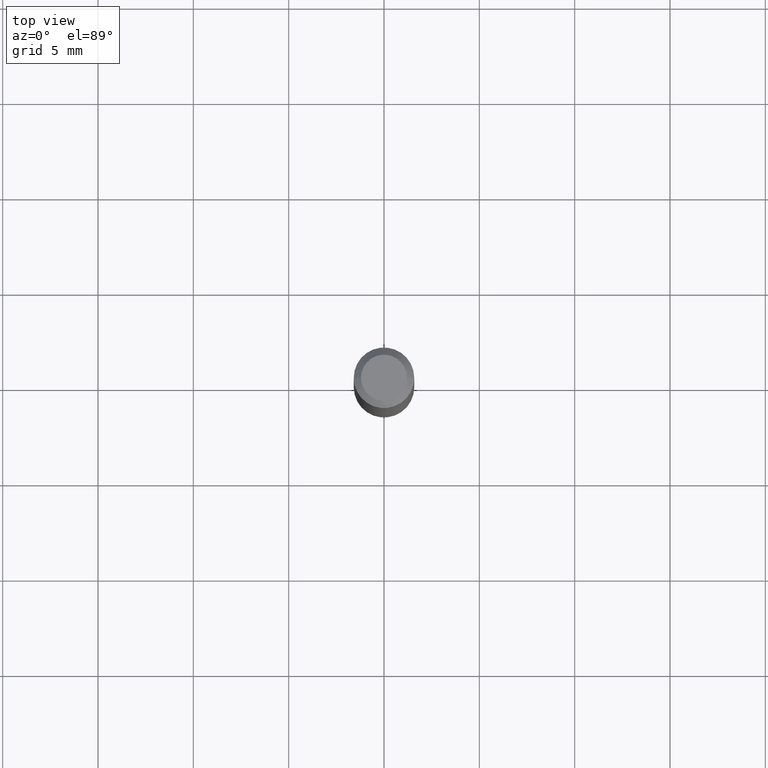
[diagram: clean part render]
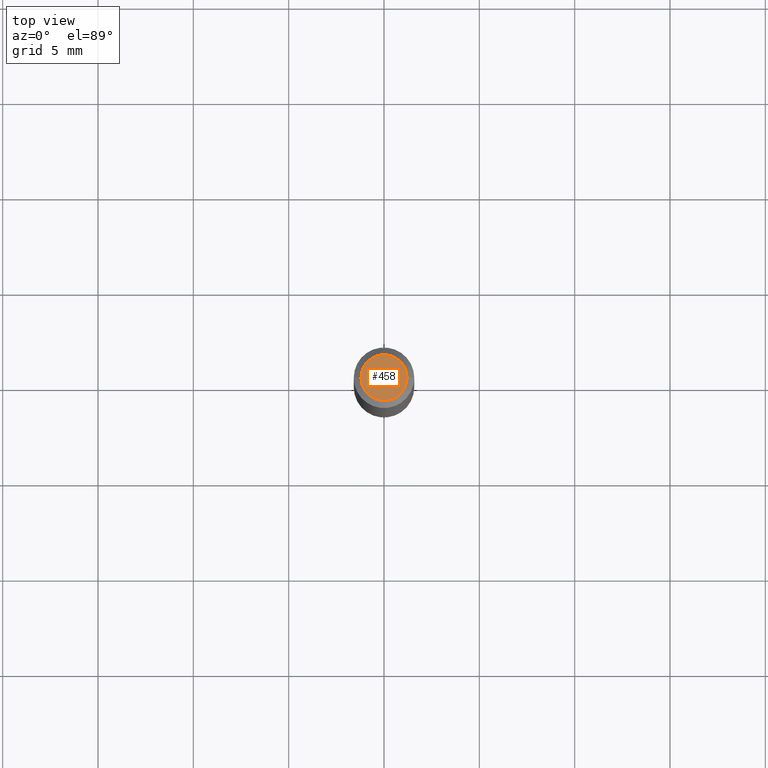
[diagram: same view with one face highlighted and labeled with its STEP entity id]
A machine part, top view. The second image highlights one B-rep face of the part: STEP entity #458.
In plain terms, the highlighted planar face has unit normal (0, -0, -1).
Its self-contained STEP definition (entity closure, byte-faithful):
#20 = CIRCLE ( 'NONE', #430, 0.04750000000000000749 ) ;
#28 = ORIENTED_EDGE ( 'NONE', *, *, #468, .T. ) ;
#53 = DIRECTION ( 'NONE',  ( 1.000000000000000000, -6.982962677686266711E-15, 4.852736867747365086E-29 ) ) ;
#75 = DIRECTION ( 'NONE',  ( -2.445468806185136597E-29, 3.491481338843145583E-15, 1.000000000000000000 ) ) ;
#93 = DIRECTION ( 'NONE',  ( -2.445468806185136597E-29, 3.491481338843145583E-15, 1.000000000000000000 ) ) ;
#102 = VERTEX_POINT ( 'NONE', #208 ) ;
#106 = DIRECTION ( 'NONE',  ( 1.000000000000000000, -6.982962677686266711E-15, 4.852736867747365086E-29 ) ) ;
#108 = CARTESIAN_POINT ( 'NONE',  ( -0.04750000000000000749, 3.578768372314221353E-16, 2.731847993664239060E-16 ) ) ;
#143 = DIRECTION ( 'NONE',  ( 2.438088387897960049E-29, -3.491481338843145188E-15, -1.000000000000000000 ) ) ;
#146 = FACE_OUTER_BOUND ( 'NONE', #371, .T. ) ;
#150 = CIRCLE ( 'NONE', #227, 0.04750000000000000749 ) ;
#177 = CARTESIAN_POINT ( 'NONE',  ( -6.680649051745406845E-45, 9.538196290434862081E-31, 2.731847993664263218E-16 ) ) ;
#208 = CARTESIAN_POINT ( 'NONE',  ( 0.04750000000000000749, -4.035134999187568762E-16, 2.731847993664288856E-16 ) ) ;
#227 = AXIS2_PLACEMENT_3D ( 'NONE', #177, #93, #53 ) ;
#302 = DIRECTION ( 'NONE',  ( -1.000000000000000000, 6.982962677686265922E-15, -4.876176775795935793E-29 ) ) ;
#332 = EDGE_CURVE ( 'NONE', #453, #102, #150, .T. ) ;
#345 = CARTESIAN_POINT ( 'NONE',  ( -6.680649051745406845E-45, 9.538196290434862081E-31, 2.731847993664263218E-16 ) ) ;
#364 = AXIS2_PLACEMENT_3D ( 'NONE', #431, #143, #302 ) ;
#371 = EDGE_LOOP ( 'NONE', ( #517, #28 ) ) ;
#430 = AXIS2_PLACEMENT_3D ( 'NONE', #345, #75, #106 ) ;
#431 = CARTESIAN_POINT ( 'NONE',  ( 3.316907271900976589E-16, 0.04750000000000000749, -2.925296391183627249E-17 ) ) ;
#453 = VERTEX_POINT ( 'NONE', #108 ) ;
#458 = ADVANCED_FACE ( 'NONE', ( #146 ), #503, .F. ) ;
#468 = EDGE_CURVE ( 'NONE', #102, #453, #20, .T. ) ;
#503 = PLANE ( 'NONE',  #364 ) ;
#517 = ORIENTED_EDGE ( 'NONE', *, *, #332, .T. ) ;